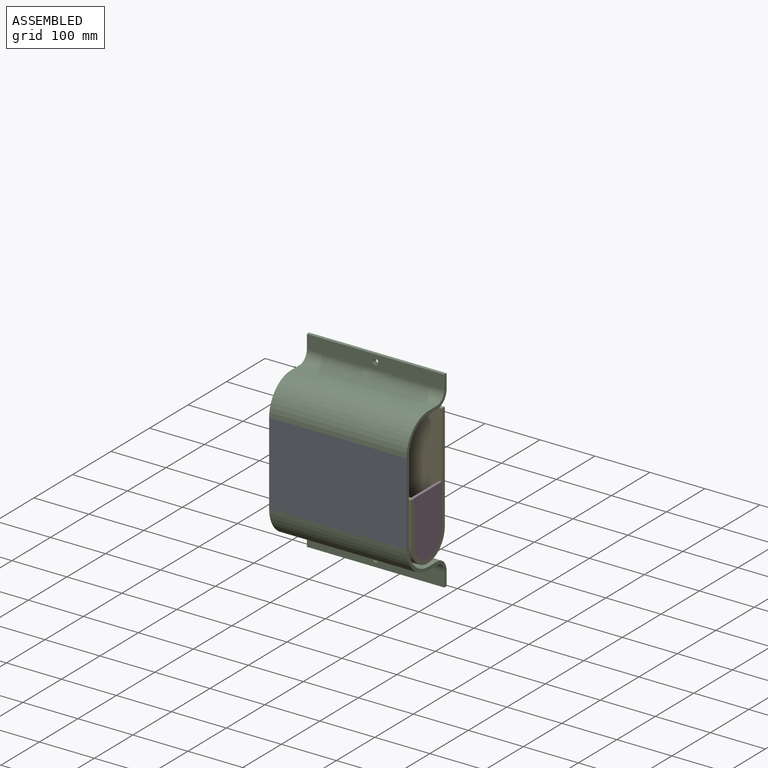
[diagram: assembled view]
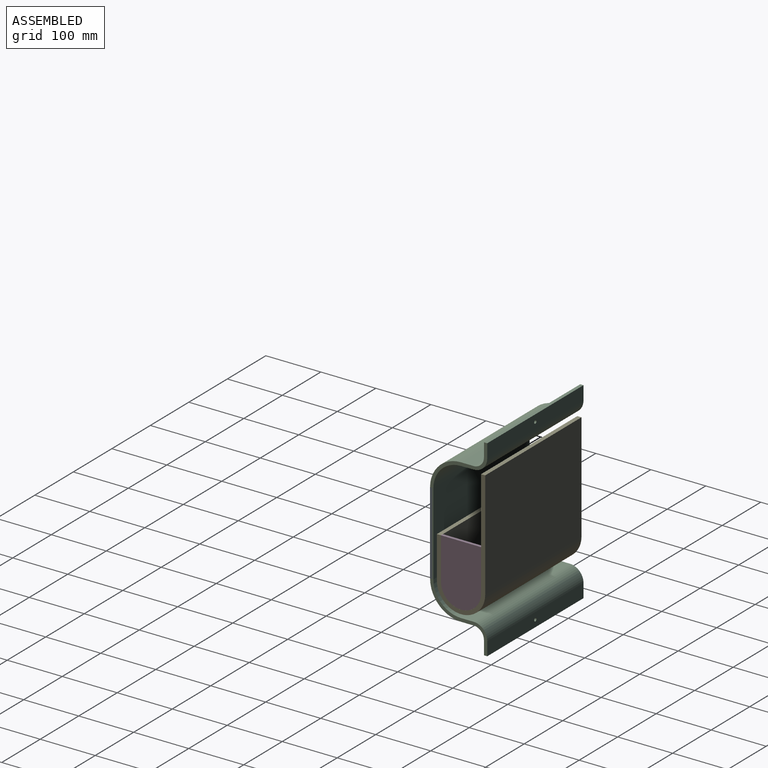
[diagram: assembled view, second angle]
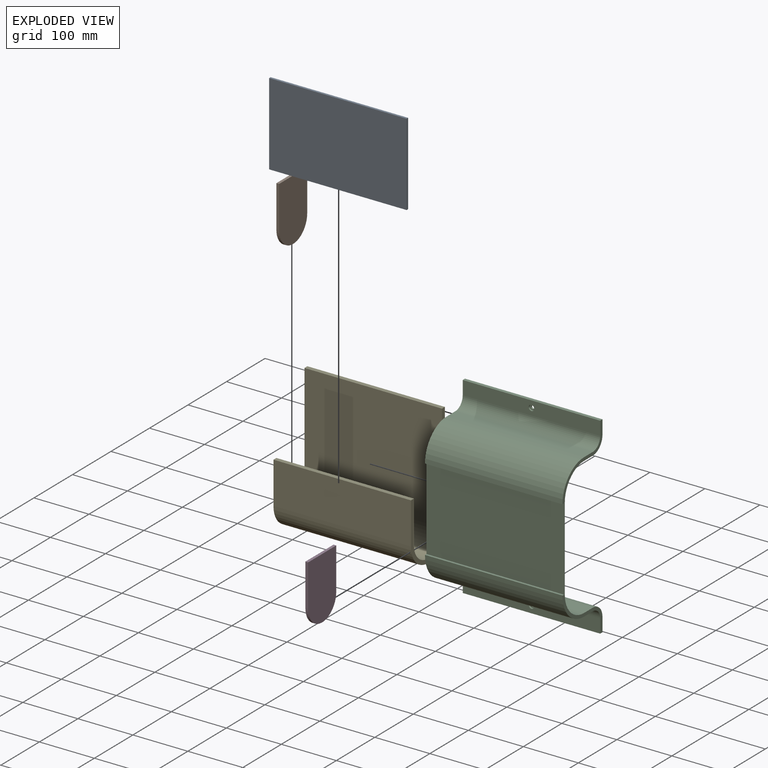
[diagram: exploded view]
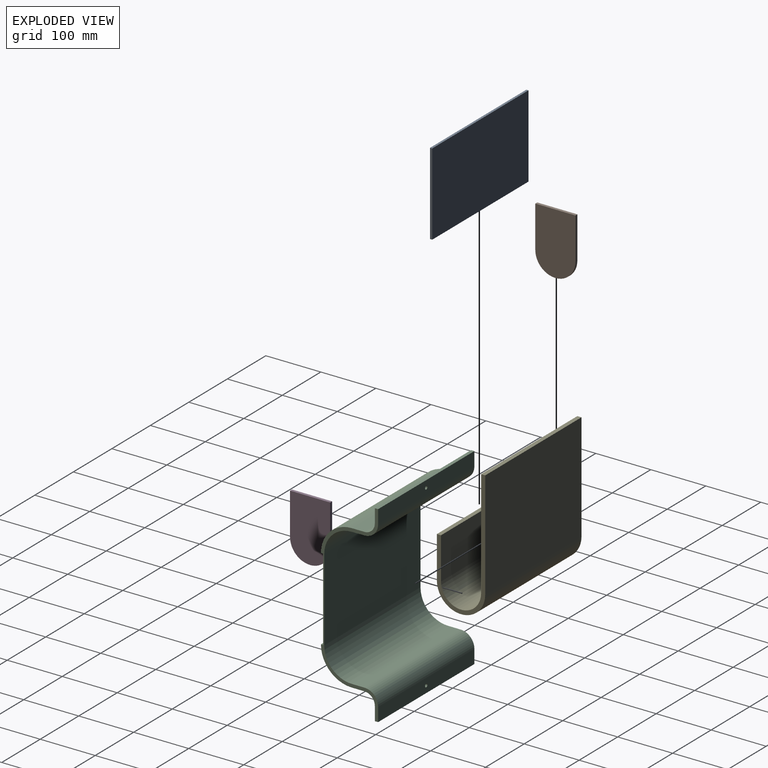
[diagram: exploded view, second angle]
ASSEMBLY  parts=5 mates=4
PART A: 6 faces, bbox 250x4x150 mm
  f0: plane 250x4mm, normal (0,0,1), area 1000mm2, adj f1,f3,f4,f5
  f1: plane 150x4mm, normal (-1,0,0), area 600mm2, adj f0,f2,f4,f5
  f2: plane 250x4mm, normal (0,0,-1), area 1000mm2, adj f1,f3,f4,f5
  f3: plane 150x4mm, normal (1,0,0), area 600mm2, adj f0,f2,f4,f5
  f4: plane 250x150mm, normal (0,-1,0), area 37500mm2, adj f0,f1,f2,f3
  f5: plane 250x150mm, normal (0,1,0), area 37500mm2, adj f0,f1,f2,f3
PART B: 6 faces, bbox 5x73x112.5 mm
  f0: plane 73x5mm, normal (0,0,1), area 365mm2, adj f1,f3,f4,f5
  f1: plane 76x5mm, normal (0,-1,0), area 380mm2, adj f0,f2,f4,f5
  f2: cylinder r=36.5mm len=73mm, axis (-1,0,0), area 573.3mm2, adj f1,f3,f4,f5
  f3: plane 76x5mm, normal (0,1,0), area 380mm2, adj f0,f2,f4,f5
  f4: plane 112.5x73mm, normal (1,0,0), area 7640.7mm2, adj f0,f1,f2,f3
  f5: plane 112.5x73mm, normal (-1,0,0), area 7640.7mm2, adj f0,f1,f2,f3
PART C: 30 faces, bbox 250x104x350 mm
  f0: cylinder r=3mm len=6mm, axis (0,-1,0), area 56.5mm2, adj f5,f28
  f1: cylinder r=3mm len=6mm, axis (0,-1,0), area 56.5mm2, adj f8,f27
  f2: cylinder r=50mm len=250mm, axis (1,0,0), area 19635mm2, adj f3,f12,f13,f14
  f3: plane 250x23mm, normal (0,0,-1), area 5750mm2, adj f2,f4,f13,f14
  f4: cylinder r=25mm len=250mm, axis (1,0,0), area 9817.5mm2, adj f3,f5,f13,f14
  f5: plane 250x25mm, normal (0,1,0), area 6221.7mm2, adj f0,f4,f6,f13,f14
  f6: plane 250x6mm, normal (0,0,1), area 1500mm2, adj f5,f13,f14,f17
  f7: plane 250x6mm, normal (0,0,-1), area 1500mm2, adj f8,f13,f14,f16
  f8: plane 250x25mm, normal (0,1,0), area 6221.7mm2, adj f1,f7,f9,f13,f14
  f9: cylinder r=25mm len=250mm, axis (1,0,0), area 9817.5mm2, adj f8,f10,f13,f14
  f10: plane 250x23mm, normal (0,0,1), area 5750mm2, adj f9,f11,f13,f14
  f11: cylinder r=50mm len=250mm, axis (1,0,0), area 19635mm2, adj f10,f12,f13,f14
  f12: plane 250x150mm, normal (0,1,0), area 37500mm2, adj f2,f11,f13,f14
  f13: plane 350x104mm, normal (-1,0,0), area 2289.7mm2, adj f2,f3,f4,f5,f6,f7,f8,f9
  f14: plane 350x104mm, normal (1,0,0), area 2289.7mm2, adj f2,f3,f4,f5,f6,f7,f8,f9
  f15: cylinder r=19mm len=250mm, axis (1,0,0), area 7461.3mm2, adj f13,f14,f16,f22
  f16: plane 250x25mm, normal (0,-1,0), area 6171.5mm2, adj f7,f13,f14,f15,f26
  f17: plane 250x25mm, normal (0,-1,0), area 6171.5mm2, adj f6,f13,f14,f18,f29
  f18: cylinder r=19mm len=250mm, axis (1,0,0), area 7461.3mm2, adj f13,f14,f17,f19
  f19: plane 250x23mm, normal (0,0,1), area 5750mm2, adj f13,f14,f18,f20
  f20: cylinder r=56mm len=250mm, axis (1,0,0), area 21991.1mm2, adj f13,f14,f19,f23
  f21: cylinder r=56mm len=250mm, axis (1,0,0), area 21991.1mm2, adj f13,f14,f22,f24
  f22: plane 250x23mm, normal (0,0,-1), area 5750mm2, adj f13,f14,f15,f21
  f23: plane 250x4mm, normal (0,0,-1), area 1000mm2, adj f13,f14,f20,f25
  f24: plane 250x4mm, normal (0,0,1), area 1000mm2, adj f13,f14,f21,f25
  f25: plane 250x150mm, normal (0,-1,0), area 37500mm2, adj f13,f14,f23,f24
  f26: cylinder r=5mm len=10mm, axis (0,-1,0), area 94.2mm2, adj f16,f27
  f27: plane 10x10mm, normal (0,-1,0), area 50.3mm2, adj f1,f26
  f28: plane 10x10mm, normal (0,-1,0), area 50.3mm2, adj f0,f29
  f29: cylinder r=5mm len=10mm, axis (0,-1,0), area 94.2mm2, adj f17,f28
PART D: 6 faces, bbox 5x73x112.5 mm
  f0: plane 73x5mm, normal (0,0,1), area 365mm2, adj f1,f3,f4,f5
  f1: plane 76x5mm, normal (0,-1,0), area 380mm2, adj f0,f2,f4,f5
  f2: cylinder r=36.5mm len=73mm, axis (1,0,0), area 573.3mm2, adj f1,f3,f4,f5
  f3: plane 76x5mm, normal (0,1,0), area 380mm2, adj f0,f2,f4,f5
  f4: plane 112.5x73mm, normal (-1,0,0), area 7640.7mm2, adj f0,f1,f2,f3
  f5: plane 112.5x73mm, normal (1,0,0), area 7640.7mm2, adj f0,f1,f2,f3
PART E: 10 faces, bbox 250x88x240 mm
  f0: cylinder r=36.5mm len=250mm, axis (-1,0,0), area 28667mm2, adj f1,f7,f8,f9
  f1: plane 250x76mm, normal (0,1,0), area 19000mm2, adj f0,f2,f8,f9
  f2: plane 250x7.5mm, normal (0,0,1), area 1875mm2, adj f1,f3,f8,f9
  f3: plane 250x76mm, normal (0,-1,0), area 19000mm2, adj f2,f4,f8,f9
  f4: cylinder r=44mm len=250mm, axis (-1,0,0), area 34557.5mm2, adj f3,f5,f8,f9
  f5: plane 250x196mm, normal (0,1,0), area 49000mm2, adj f4,f6,f8,f9
  f6: plane 250x7.5mm, normal (0,0,1), area 1875mm2, adj f5,f7,f8,f9
  f7: plane 250x196mm, normal (0,-1,0), area 49000mm2, adj f0,f6,f8,f9
  f8: plane 240x88mm, normal (1,0,0), area 2988.4mm2, adj f0,f1,f2,f3,f4,f5,f6,f7
  f9: plane 240x88mm, normal (-1,0,0), area 2988.4mm2, adj f0,f1,f2,f3,f4,f5,f6,f7
PLACE A t=(190.25,86.05,-143.52)mm
PLACE B t=(-60.23,87.05,-142.52)mm
PLACE C t=(190.25,86.05,-143.52)mm fixed
PLACE D t=(-60.23,87.05,-142.52)mm
PLACE E t=(-60.23,87.05,-142.52)mm
MATE slider C.f11 <-> E.f0  axis (1,0,0) through (65.25,38.05,-218.52)mm
MATE fastened B.f2 <-> E.f0  axis (-1,0,0) through (-60.23,38.05,-218.52)mm
MATE fastened A.f2 <-> C.f24  axis (0,0,-1) through (65.25,-15.95,-218.52)mm
MATE fastened D.f2 <-> E.f0  axis (1,0,0) through (189.77,38.05,-218.52)mm
